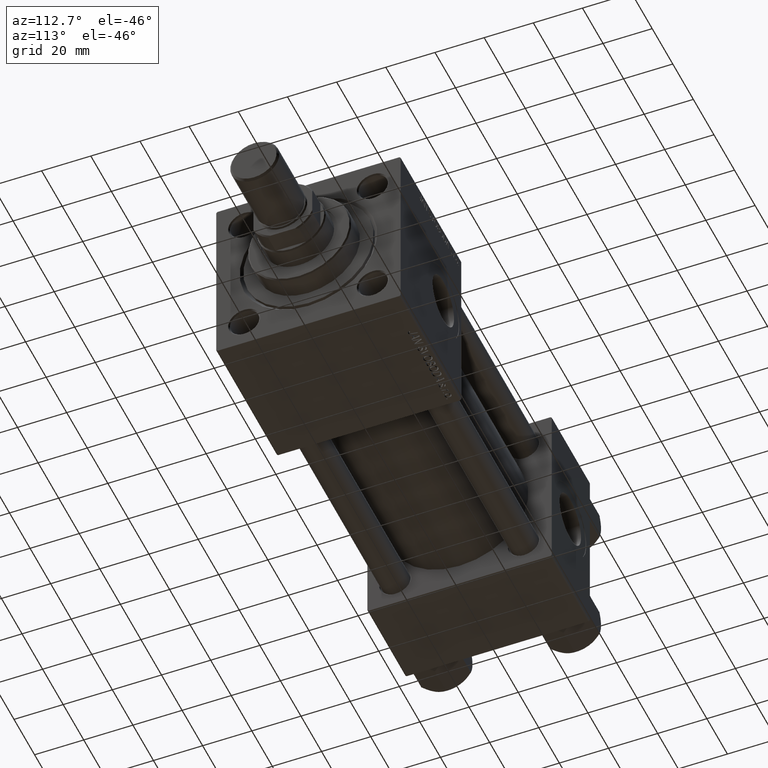
[diagram: clean part render]
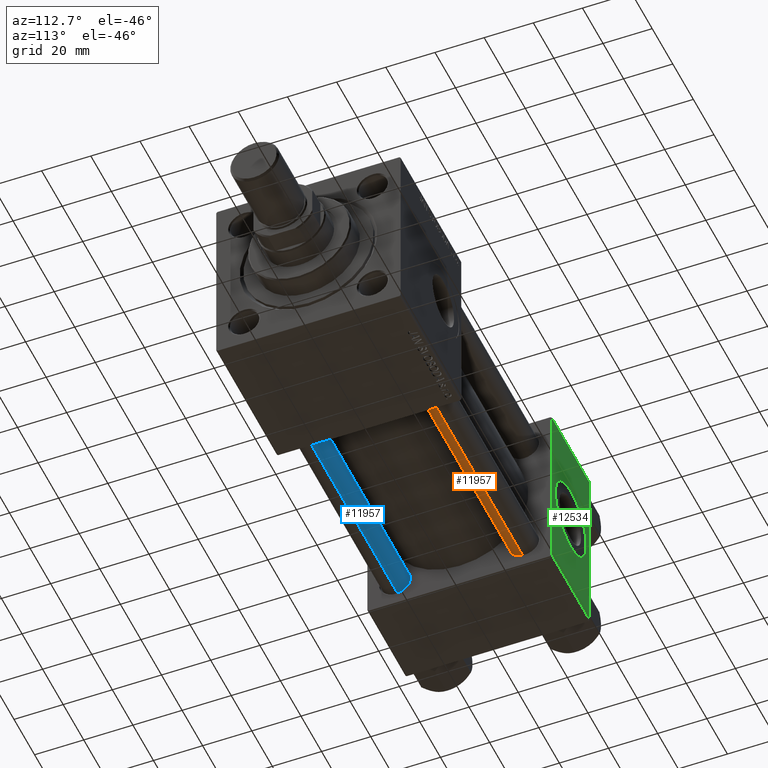
[diagram: same view with three faces highlighted in distinct colors, each labeled with its STEP entity id]
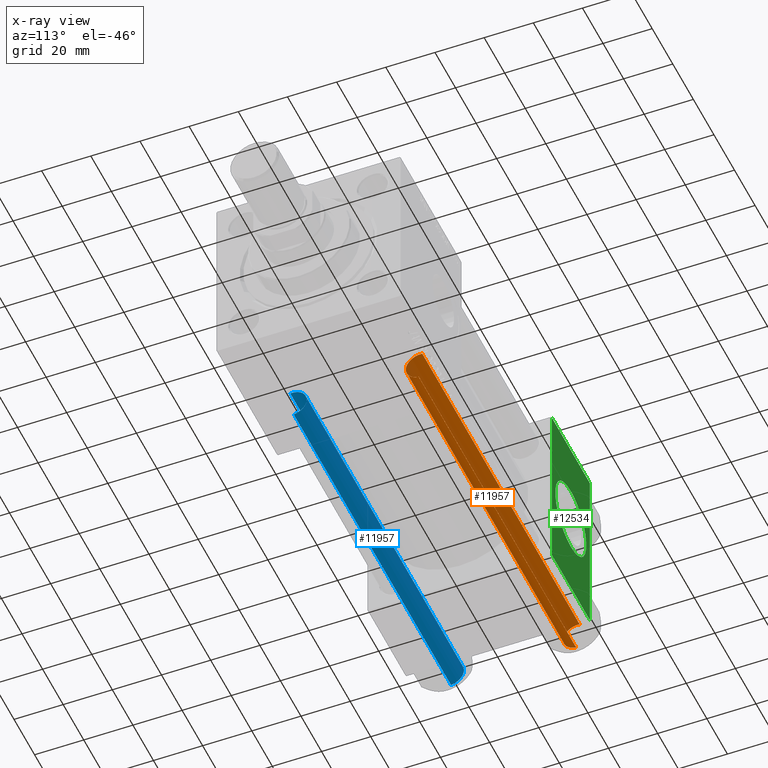
[diagram: x-ray of the same camera — body ghosted, the three highlighted faces saturated]
A machine part, auxiliary view with three faces highlighted in distinct colors.
The next image is the same camera in x-ray (body ghosted, the three faces saturated) — at least one of them is partly hidden behind the body in this view.
Their STEP definitions:

[orange] entity #11957 — the highlighted cylindrical surface (edge-blend (fillet) strip) has radius 6 mm, axis along (1, -0, 0).
#264 = FACE_OUTER_BOUND ( 'NONE', #3854, .T. ) ;
#2204 = CARTESIAN_POINT ( 'NONE',  ( 6.000000000000000888, 7.347880794884120722E-16, 153.5000000000000000 ) ) ;
#2895 = VERTEX_POINT ( 'NONE', #3016 ) ;
#3016 = CARTESIAN_POINT ( 'NONE',  ( -6.000000000000000888, 0.000000000000000000, 153.5000000000000000 ) ) ;
#3286 = VERTEX_POINT ( 'NONE', #2204 ) ;
#3854 = EDGE_LOOP ( 'NONE', ( #16046, #15677, #9599, #36517 ) ) ;
#3887 = CARTESIAN_POINT ( 'NONE',  ( -6.000000000000000888, 0.000000000000000000, 0.5000000000000281997 ) ) ;
#4910 = CARTESIAN_POINT ( 'NONE',  ( 6.000000000000000888, 7.347880794884120722E-16, 0.5000000000000281997 ) ) ;
#7138 = CARTESIAN_POINT ( 'NONE',  ( 0.000000000000000000, 0.000000000000000000, 153.5000000000000000 ) ) ;
#9599 = ORIENTED_EDGE ( 'NONE', *, *, #16349, .T. ) ;
#9761 = VERTEX_POINT ( 'NONE', #3887 ) ;
#11084 = VECTOR ( 'NONE', #28105, 1000.000000000000000 ) ;
#11538 = DIRECTION ( 'NONE',  ( 1.000000000000000000, 0.000000000000000000, 0.000000000000000000 ) ) ;
#11957 = ADVANCED_FACE ( 'NONE', ( #264 ), #48149, .T. ) ;
#13597 = DIRECTION ( 'NONE',  ( -0.000000000000000000, -0.000000000000000000, -1.000000000000000000 ) ) ;
#13621 = EDGE_CURVE ( 'NONE', #9761, #35753, #31877, .T. ) ;
#15677 = ORIENTED_EDGE ( 'NONE', *, *, #34324, .T. ) ;
#15897 = DIRECTION ( 'NONE',  ( -1.000000000000000000, 0.000000000000000000, 0.000000000000000000 ) ) ;
#16046 = ORIENTED_EDGE ( 'NONE', *, *, #48182, .F. ) ;
#16349 = EDGE_CURVE ( 'NONE', #2895, #9761, #33063, .T. ) ;
#17214 = AXIS2_PLACEMENT_3D ( 'NONE', #32032, #35360, #15897 ) ;
#22769 = DIRECTION ( 'NONE',  ( 1.000000000000000000, 0.000000000000000000, 0.000000000000000000 ) ) ;
#27074 = CARTESIAN_POINT ( 'NONE',  ( 6.000000000000000888, 7.347880794884120722E-16, 154.0000000000000000 ) ) ;
#28105 = DIRECTION ( 'NONE',  ( -0.000000000000000000, -0.000000000000000000, -1.000000000000000000 ) ) ;
#30344 = AXIS2_PLACEMENT_3D ( 'NONE', #7138, #38141, #22769 ) ;
#31698 = LINE ( 'NONE', #27074, #11084 ) ;
#31877 = CIRCLE ( 'NONE', #34307, 6.000000000000000888 ) ;
#32032 = CARTESIAN_POINT ( 'NONE',  ( 0.000000000000000000, 0.000000000000000000, 154.0000000000000000 ) ) ;
#33063 = LINE ( 'NONE', #48680, #36043 ) ;
#34307 = AXIS2_PLACEMENT_3D ( 'NONE', #34848, #50209, #11538 ) ;
#34324 = EDGE_CURVE ( 'NONE', #3286, #2895, #41837, .T. ) ;
#34848 = CARTESIAN_POINT ( 'NONE',  ( 0.000000000000000000, 0.000000000000000000, 0.5000000000000281997 ) ) ;
#35360 = DIRECTION ( 'NONE',  ( -0.000000000000000000, -0.000000000000000000, -1.000000000000000000 ) ) ;
#35753 = VERTEX_POINT ( 'NONE', #4910 ) ;
#36043 = VECTOR ( 'NONE', #13597, 1000.000000000000000 ) ;
#36517 = ORIENTED_EDGE ( 'NONE', *, *, #13621, .T. ) ;
#38141 = DIRECTION ( 'NONE',  ( 0.000000000000000000, 0.000000000000000000, -1.000000000000000000 ) ) ;
#41837 = CIRCLE ( 'NONE', #30344, 6.000000000000000888 ) ;
#48149 = CYLINDRICAL_SURFACE ( 'NONE', #17214, 6.000000000000000888 ) ;
#48182 = EDGE_CURVE ( 'NONE', #3286, #35753, #31698, .T. ) ;
#48680 = CARTESIAN_POINT ( 'NONE',  ( -6.000000000000000888, 0.000000000000000000, 154.0000000000000000 ) ) ;
#50209 = DIRECTION ( 'NONE',  ( -0.000000000000000000, -0.000000000000000000, 1.000000000000000000 ) ) ;

[blue] entity #11957 — the highlighted cylindrical surface (edge-blend (fillet) strip) has radius 6 mm, axis along (-1, -0, -0).
#264 = FACE_OUTER_BOUND ( 'NONE', #3854, .T. ) ;
#2204 = CARTESIAN_POINT ( 'NONE',  ( 6.000000000000000888, 7.347880794884120722E-16, 153.5000000000000000 ) ) ;
#2895 = VERTEX_POINT ( 'NONE', #3016 ) ;
#3016 = CARTESIAN_POINT ( 'NONE',  ( -6.000000000000000888, 0.000000000000000000, 153.5000000000000000 ) ) ;
#3286 = VERTEX_POINT ( 'NONE', #2204 ) ;
#3854 = EDGE_LOOP ( 'NONE', ( #16046, #15677, #9599, #36517 ) ) ;
#3887 = CARTESIAN_POINT ( 'NONE',  ( -6.000000000000000888, 0.000000000000000000, 0.5000000000000281997 ) ) ;
#4910 = CARTESIAN_POINT ( 'NONE',  ( 6.000000000000000888, 7.347880794884120722E-16, 0.5000000000000281997 ) ) ;
#7138 = CARTESIAN_POINT ( 'NONE',  ( 0.000000000000000000, 0.000000000000000000, 153.5000000000000000 ) ) ;
#9599 = ORIENTED_EDGE ( 'NONE', *, *, #16349, .T. ) ;
#9761 = VERTEX_POINT ( 'NONE', #3887 ) ;
#11084 = VECTOR ( 'NONE', #28105, 1000.000000000000000 ) ;
#11538 = DIRECTION ( 'NONE',  ( 1.000000000000000000, 0.000000000000000000, 0.000000000000000000 ) ) ;
#11957 = ADVANCED_FACE ( 'NONE', ( #264 ), #48149, .T. ) ;
#13597 = DIRECTION ( 'NONE',  ( -0.000000000000000000, -0.000000000000000000, -1.000000000000000000 ) ) ;
#13621 = EDGE_CURVE ( 'NONE', #9761, #35753, #31877, .T. ) ;
#15677 = ORIENTED_EDGE ( 'NONE', *, *, #34324, .T. ) ;
#15897 = DIRECTION ( 'NONE',  ( -1.000000000000000000, 0.000000000000000000, 0.000000000000000000 ) ) ;
#16046 = ORIENTED_EDGE ( 'NONE', *, *, #48182, .F. ) ;
#16349 = EDGE_CURVE ( 'NONE', #2895, #9761, #33063, .T. ) ;
#17214 = AXIS2_PLACEMENT_3D ( 'NONE', #32032, #35360, #15897 ) ;
#22769 = DIRECTION ( 'NONE',  ( 1.000000000000000000, 0.000000000000000000, 0.000000000000000000 ) ) ;
#27074 = CARTESIAN_POINT ( 'NONE',  ( 6.000000000000000888, 7.347880794884120722E-16, 154.0000000000000000 ) ) ;
#28105 = DIRECTION ( 'NONE',  ( -0.000000000000000000, -0.000000000000000000, -1.000000000000000000 ) ) ;
#30344 = AXIS2_PLACEMENT_3D ( 'NONE', #7138, #38141, #22769 ) ;
#31698 = LINE ( 'NONE', #27074, #11084 ) ;
#31877 = CIRCLE ( 'NONE', #34307, 6.000000000000000888 ) ;
#32032 = CARTESIAN_POINT ( 'NONE',  ( 0.000000000000000000, 0.000000000000000000, 154.0000000000000000 ) ) ;
#33063 = LINE ( 'NONE', #48680, #36043 ) ;
#34307 = AXIS2_PLACEMENT_3D ( 'NONE', #34848, #50209, #11538 ) ;
#34324 = EDGE_CURVE ( 'NONE', #3286, #2895, #41837, .T. ) ;
#34848 = CARTESIAN_POINT ( 'NONE',  ( 0.000000000000000000, 0.000000000000000000, 0.5000000000000281997 ) ) ;
#35360 = DIRECTION ( 'NONE',  ( -0.000000000000000000, -0.000000000000000000, -1.000000000000000000 ) ) ;
#35753 = VERTEX_POINT ( 'NONE', #4910 ) ;
#36043 = VECTOR ( 'NONE', #13597, 1000.000000000000000 ) ;
#36517 = ORIENTED_EDGE ( 'NONE', *, *, #13621, .T. ) ;
#38141 = DIRECTION ( 'NONE',  ( 0.000000000000000000, 0.000000000000000000, -1.000000000000000000 ) ) ;
#41837 = CIRCLE ( 'NONE', #30344, 6.000000000000000888 ) ;
#48149 = CYLINDRICAL_SURFACE ( 'NONE', #17214, 6.000000000000000888 ) ;
#48182 = EDGE_CURVE ( 'NONE', #3286, #35753, #31698, .T. ) ;
#48680 = CARTESIAN_POINT ( 'NONE',  ( -6.000000000000000888, 0.000000000000000000, 154.0000000000000000 ) ) ;
#50209 = DIRECTION ( 'NONE',  ( -0.000000000000000000, -0.000000000000000000, 1.000000000000000000 ) ) ;

[green] entity #12534 — the highlighted planar face has unit normal (0, 1, 0).
#710 = EDGE_LOOP ( 'NONE', ( #49169, #13447, #6110, #12366 ) ) ;
#1767 = LINE ( 'NONE', #13558, #14361 ) ;
#2146 = EDGE_LOOP ( 'NONE', ( #31608, #41623 ) ) ;
#2295 = CARTESIAN_POINT ( 'NONE',  ( 37.00000000000000000, 37.49999999999999289, -36.99999999999998579 ) ) ;
#3939 = DIRECTION ( 'NONE',  ( 0.000000000000000000, -0.000000000000000000, 1.000000000000000000 ) ) ;
#4045 = AXIS2_PLACEMENT_3D ( 'NONE', #23416, #43380, #3939 ) ;
#4393 = AXIS2_PLACEMENT_3D ( 'NONE', #41971, #49125, #22502 ) ;
#4645 = VERTEX_POINT ( 'NONE', #6895 ) ;
#4890 = CARTESIAN_POINT ( 'NONE',  ( 37.00000000000000000, 37.49999999999999289, 37.00000000000000000 ) ) ;
#5375 = DIRECTION ( 'NONE',  ( -1.000000000000000000, 0.000000000000000000, 0.000000000000000000 ) ) ;
#6110 = ORIENTED_EDGE ( 'NONE', *, *, #17279, .F. ) ;
#6132 = CARTESIAN_POINT ( 'NONE',  ( 18.50000000000000355, 37.49999999999999289, -15.00000000000000178 ) ) ;
#6153 = CARTESIAN_POINT ( 'NONE',  ( 0.000000000000000000, 37.49999999999999289, 37.50000000000000000 ) ) ;
#6798 = CARTESIAN_POINT ( 'NONE',  ( 37.00000000000000000, 37.49999999999999289, 37.50000000000000000 ) ) ;
#6895 = CARTESIAN_POINT ( 'NONE',  ( 18.50000000000000000, 37.49999999999999289, 15.00000000000000178 ) ) ;
#7433 = VERTEX_POINT ( 'NONE', #43440 ) ;
#7604 = VECTOR ( 'NONE', #36143, 1000.000000000000000 ) ;
#10207 = VERTEX_POINT ( 'NONE', #40163 ) ;
#12366 = ORIENTED_EDGE ( 'NONE', *, *, #42757, .T. ) ;
#12394 = VECTOR ( 'NONE', #18691, 1000.000000000000000 ) ;
#12534 = ADVANCED_FACE ( 'NONE', ( #22657, #23663 ), #46964, .T. ) ;
#13447 = ORIENTED_EDGE ( 'NONE', *, *, #48898, .T. ) ;
#13558 = CARTESIAN_POINT ( 'NONE',  ( 37.00000000000000000, 37.49999999999999289, -36.99999999999998579 ) ) ;
#13632 = EDGE_CURVE ( 'NONE', #4645, #46371, #42500, .T. ) ;
#14361 = VECTOR ( 'NONE', #5375, 1000.000000000000000 ) ;
#14876 = DIRECTION ( 'NONE',  ( 0.000000000000000000, 0.000000000000000000, 1.000000000000000000 ) ) ;
#17279 = EDGE_CURVE ( 'NONE', #7433, #40091, #21789, .T. ) ;
#18691 = DIRECTION ( 'NONE',  ( 0.000000000000000000, 0.000000000000000000, -1.000000000000000000 ) ) ;
#19489 = CARTESIAN_POINT ( 'NONE',  ( 18.50000000000000000, 37.49999999999999289, 0.000000000000000000 ) ) ;
#21789 = LINE ( 'NONE', #6153, #12394 ) ;
#21928 = LINE ( 'NONE', #6798, #34042 ) ;
#22502 = DIRECTION ( 'NONE',  ( 0.000000000000000000, 0.000000000000000000, 1.000000000000000000 ) ) ;
#22657 = FACE_BOUND ( 'NONE', #2146, .T. ) ;
#23416 = CARTESIAN_POINT ( 'NONE',  ( 37.00000000000000000, 37.49999999999999289, 37.50000000000000000 ) ) ;
#23663 = FACE_OUTER_BOUND ( 'NONE', #710, .T. ) ;
#23725 = AXIS2_PLACEMENT_3D ( 'NONE', #19489, #27154, #14876 ) ;
#23859 = LINE ( 'NONE', #4890, #7604 ) ;
#27154 = DIRECTION ( 'NONE',  ( 0.000000000000000000, 1.000000000000000000, 0.000000000000000000 ) ) ;
#29111 = DIRECTION ( 'NONE',  ( 0.000000000000000000, 0.000000000000000000, -1.000000000000000000 ) ) ;
#31608 = ORIENTED_EDGE ( 'NONE', *, *, #13632, .F. ) ;
#34042 = VECTOR ( 'NONE', #29111, 1000.000000000000000 ) ;
#36143 = DIRECTION ( 'NONE',  ( 1.000000000000000000, 0.000000000000000000, 0.000000000000000000 ) ) ;
#40091 = VERTEX_POINT ( 'NONE', #48859 ) ;
#40163 = CARTESIAN_POINT ( 'NONE',  ( 37.00000000000000000, 37.49999999999999289, 37.00000000000000000 ) ) ;
#41623 = ORIENTED_EDGE ( 'NONE', *, *, #44272, .F. ) ;
#41971 = CARTESIAN_POINT ( 'NONE',  ( 18.50000000000000000, 37.49999999999999289, 0.000000000000000000 ) ) ;
#42500 = CIRCLE ( 'NONE', #23725, 15.00000000000000178 ) ;
#42757 = EDGE_CURVE ( 'NONE', #7433, #10207, #23859, .T. ) ;
#42856 = CIRCLE ( 'NONE', #4393, 15.00000000000000178 ) ;
#42883 = VERTEX_POINT ( 'NONE', #2295 ) ;
#43380 = DIRECTION ( 'NONE',  ( -0.000000000000000000, 1.000000000000000000, 0.000000000000000000 ) ) ;
#43440 = CARTESIAN_POINT ( 'NONE',  ( 0.000000000000000000, 37.49999999999999289, 37.00000000000000000 ) ) ;
#44272 = EDGE_CURVE ( 'NONE', #46371, #4645, #42856, .T. ) ;
#46371 = VERTEX_POINT ( 'NONE', #6132 ) ;
#46964 = PLANE ( 'NONE',  #4045 ) ;
#48859 = CARTESIAN_POINT ( 'NONE',  ( 0.000000000000000000, 37.49999999999999289, -36.99999999999998579 ) ) ;
#48898 = EDGE_CURVE ( 'NONE', #42883, #40091, #1767, .T. ) ;
#49125 = DIRECTION ( 'NONE',  ( 0.000000000000000000, 1.000000000000000000, 0.000000000000000000 ) ) ;
#49169 = ORIENTED_EDGE ( 'NONE', *, *, #50072, .T. ) ;
#50072 = EDGE_CURVE ( 'NONE', #10207, #42883, #21928, .T. ) ;